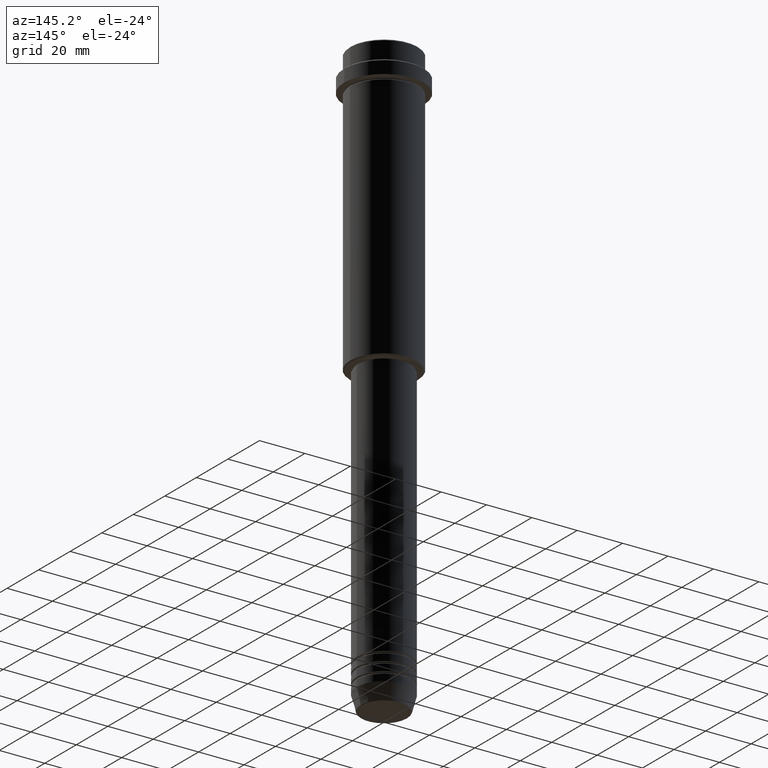
[diagram: clean part render]
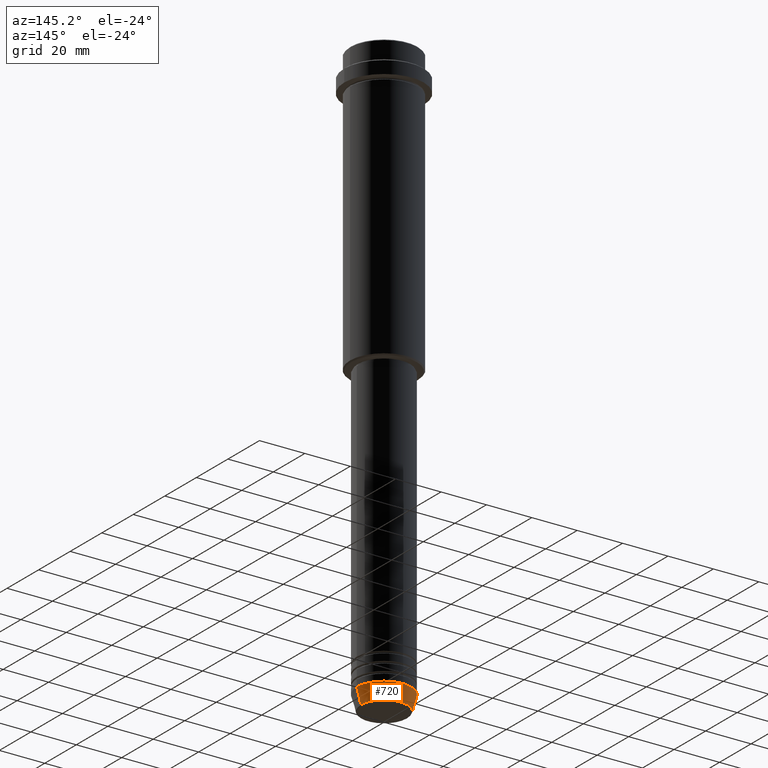
[diagram: same view with one face highlighted and labeled with its STEP entity id]
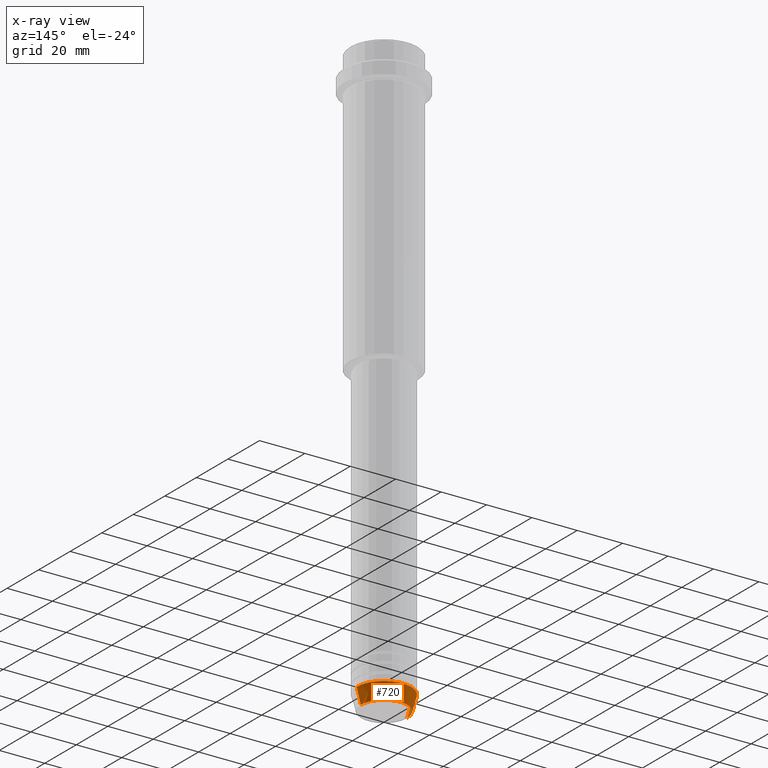
[diagram: x-ray of the same camera — body ghosted, the highlighted face saturated]
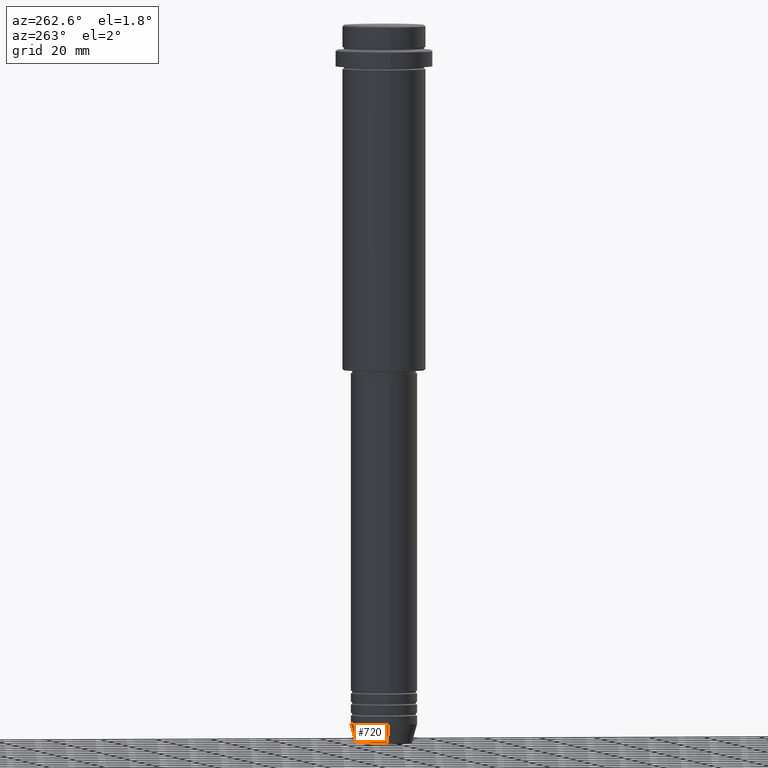
[diagram: same view with one face highlighted and labeled with its STEP entity id]
A machine part, auxiliary view. The second image highlights one B-rep face of the part: STEP entity #720.
The next image is the same camera in x-ray: the body ghosted, the highlighted face saturated — about 0% of this face is hidden behind the body in this view.
A second angle (auxiliary view) of the same face is appended — the face is thin or edge-on in the first view.
In plain terms, the highlighted conical surface has half-angle 15 deg.
Its self-contained STEP definition (entity closure, byte-faithful):
#46 = CARTESIAN_POINT ( 'NONE',  ( -12.00000000000000000, 1.469576158976823947E-15, -253.0000000000000000 ) ) ;
#150 = CARTESIAN_POINT ( 'NONE',  ( 12.00000000000000000, 0.000000000000000000, -253.0000000000000000 ) ) ;
#151 = FACE_OUTER_BOUND ( 'NONE', #322, .T. ) ;
#152 = CARTESIAN_POINT ( 'NONE',  ( 0.000000000000000000, 0.000000000000000000, -253.0000000000000000 ) ) ;
#164 = DIRECTION ( 'NONE',  ( 1.000000000000000000, 0.000000000000000000, 0.000000000000000000 ) ) ;
#168 = ORIENTED_EDGE ( 'NONE', *, *, #1262, .F. ) ;
#204 = CIRCLE ( 'NONE', #950, 12.00000000000000000 ) ;
#236 = VERTEX_POINT ( 'NONE', #451 ) ;
#262 = DIRECTION ( 'NONE',  ( -0.000000000000000000, -0.000000000000000000, 1.000000000000000000 ) ) ;
#299 = CARTESIAN_POINT ( 'NONE',  ( -10.22365507213719127, 1.360806402472382744E-15, -259.6294095225512706 ) ) ;
#322 = EDGE_LOOP ( 'NONE', ( #1268, #1245, #1392, #168 ) ) ;
#336 = VECTOR ( 'NONE', #915, 1000.000000000000000 ) ;
#352 = EDGE_CURVE ( 'NONE', #778, #236, #204, .T. ) ;
#365 = AXIS2_PLACEMENT_3D ( 'NONE', #832, #1277, #1079 ) ;
#451 = CARTESIAN_POINT ( 'NONE',  ( -12.00000000000000000, 1.469576158976823947E-15, -253.0000000000000000 ) ) ;
#481 = LINE ( 'NONE', #46, #336 ) ;
#491 = LINE ( 'NONE', #150, #1361 ) ;
#523 = CONICAL_SURFACE ( 'NONE', #1118, 12.00000000000000000, 0.2617993877991500740 ) ;
#547 = EDGE_CURVE ( 'NONE', #768, #550, #907, .T. ) ;
#550 = VERTEX_POINT ( 'NONE', #299 ) ;
#579 = DIRECTION ( 'NONE',  ( -0.000000000000000000, -0.000000000000000000, 1.000000000000000000 ) ) ;
#720 = ADVANCED_FACE ( 'NONE', ( #151 ), #523, .T. ) ;
#768 = VERTEX_POINT ( 'NONE', #1019 ) ;
#778 = VERTEX_POINT ( 'NONE', #1260 ) ;
#780 = EDGE_CURVE ( 'NONE', #550, #236, #481, .T. ) ;
#826 = DIRECTION ( 'NONE',  ( 1.000000000000000000, 0.000000000000000000, 0.000000000000000000 ) ) ;
#832 = CARTESIAN_POINT ( 'NONE',  ( 0.000000000000000000, 0.000000000000000000, -259.6294095225512706 ) ) ;
#907 = CIRCLE ( 'NONE', #365, 10.22365507213719127 ) ;
#914 = DIRECTION ( 'NONE',  ( 0.2588190451025213501, 0.000000000000000000, 0.9659258262890680902 ) ) ;
#915 = DIRECTION ( 'NONE',  ( -0.2588190451025213501, 3.169619151431772337E-17, 0.9659258262890680902 ) ) ;
#950 = AXIS2_PLACEMENT_3D ( 'NONE', #152, #262, #164 ) ;
#1019 = CARTESIAN_POINT ( 'NONE',  ( 10.22365507213719127, 0.000000000000000000, -259.6294095225512706 ) ) ;
#1025 = CARTESIAN_POINT ( 'NONE',  ( 0.000000000000000000, 0.000000000000000000, -253.0000000000000000 ) ) ;
#1079 = DIRECTION ( 'NONE',  ( 1.000000000000000000, 0.000000000000000000, 0.000000000000000000 ) ) ;
#1118 = AXIS2_PLACEMENT_3D ( 'NONE', #1025, #579, #826 ) ;
#1245 = ORIENTED_EDGE ( 'NONE', *, *, #780, .T. ) ;
#1260 = CARTESIAN_POINT ( 'NONE',  ( 12.00000000000000000, 0.000000000000000000, -253.0000000000000000 ) ) ;
#1262 = EDGE_CURVE ( 'NONE', #768, #778, #491, .T. ) ;
#1268 = ORIENTED_EDGE ( 'NONE', *, *, #547, .T. ) ;
#1277 = DIRECTION ( 'NONE',  ( -0.000000000000000000, -0.000000000000000000, 1.000000000000000000 ) ) ;
#1361 = VECTOR ( 'NONE', #914, 1000.000000000000000 ) ;
#1392 = ORIENTED_EDGE ( 'NONE', *, *, #352, .F. ) ;